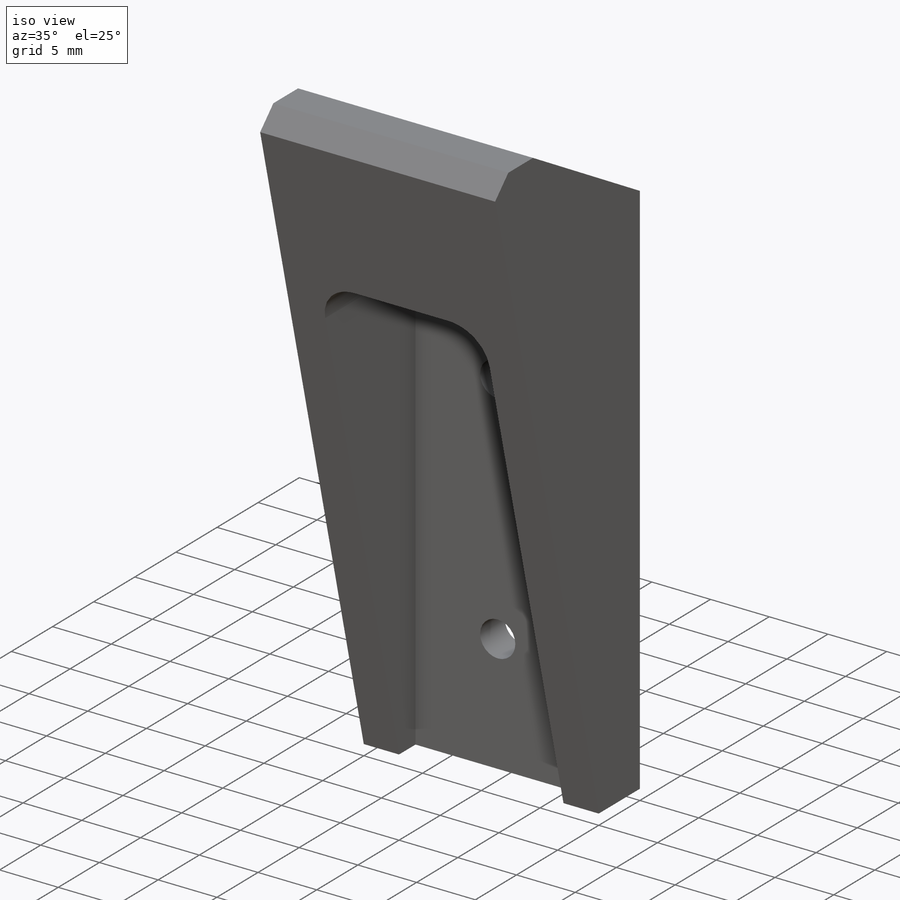
[diagram: iso view]
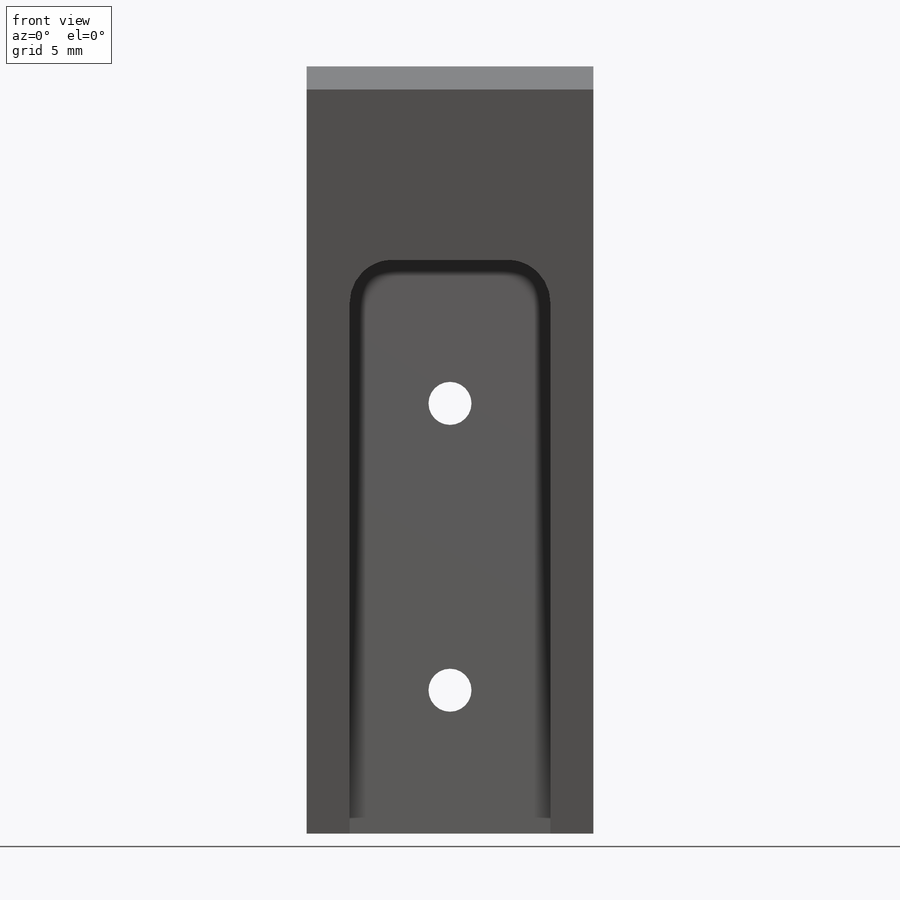
[diagram: front view]
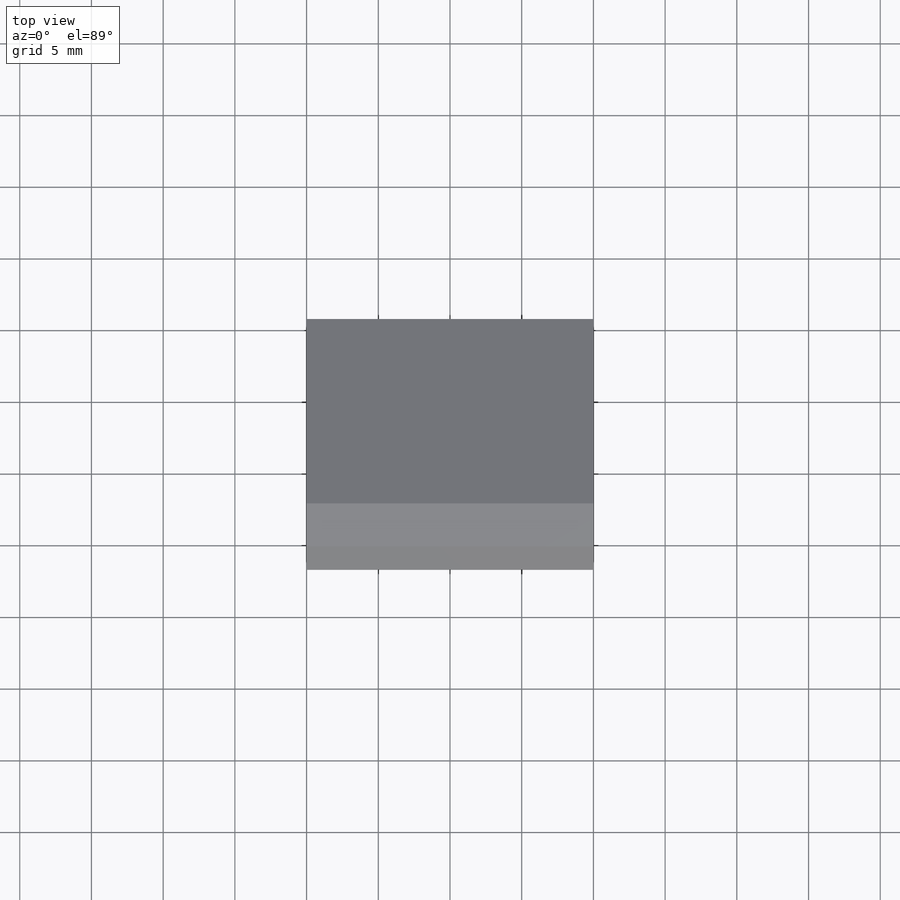
[diagram: top view]
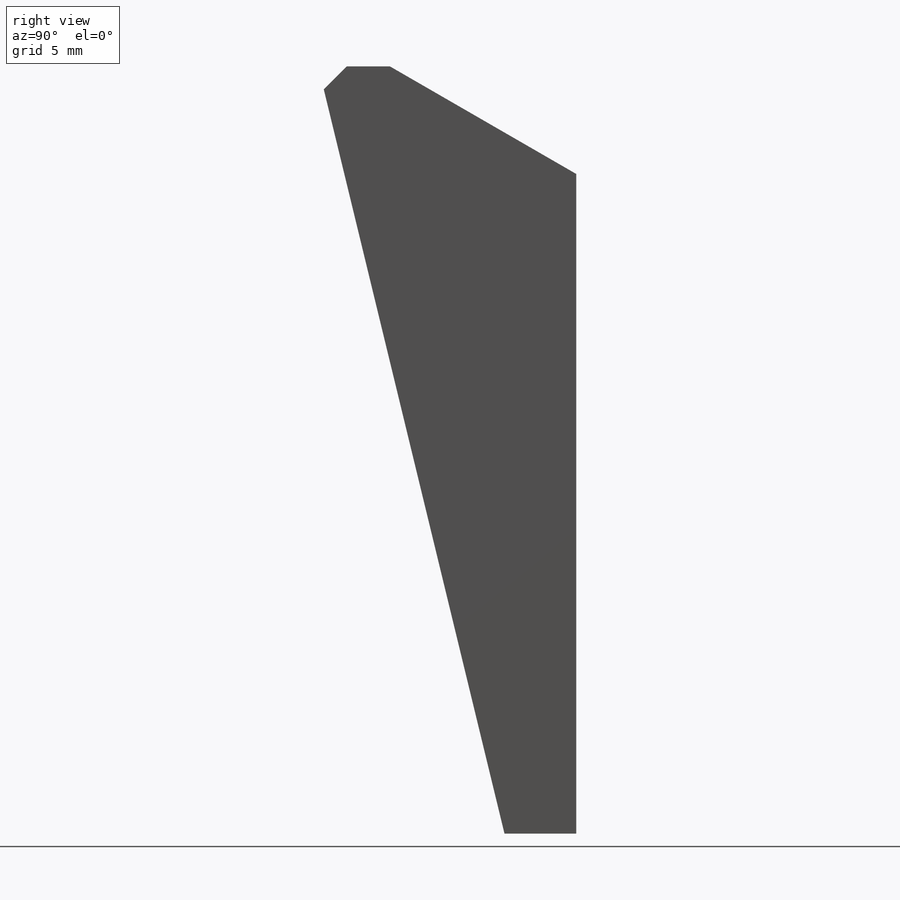
[diagram: right view]
SOLIDWORKS PART (.sldprt)
format: sldprt  version: not decoded by parser v0  size: 217,088 bytes
history: native  units: mm
features: sketch x5, plane x2, material x1, extrude x1, cut_extrude x1, fillet x1, chamfer x1, hole x1 (+13 scaffold rows collapsed)
feature tree (26):
  scaffold x13  (default folders/planes/origin — collapsed)
  material  "Material <not specified>"
  sketch  "Sketch1"  dims[c1.D1=5.0mm c1.D2=46.0mm c1.D3=5.0mm c1.D4=2.0mm c2.D3=46.0mm c3.D3=120.0deg c3.D4=15.0mm c3.D5=5.0mm]
  extrude  "Boss-Extrude1"  Depth=20mm
  plane  "Plane1"
  plane  "Plane2"
  sketch  "Sketch4"  dims[D2=3.0mm D3=3.0mm D4=40.0mm D1=0.0mm]
  cut_extrude  "Cut-Extrude1"  Depth=3mm
  sketch  "Sketch5"  dims[D1=10.0mm D2=10.0mm]
  fillet  "Fillet1"  Radius=3mm
  chamfer  "Chamfer1"  Distance=2mm Angle=45deg
  hole  "M3 Clearance"  Diameter=3.1mm Depth=3mm
  sketch  "3DSketch1"
  sketch  "Sketch7"  dims[hole-wizard template sketch: 60 standard entries collapsed; hole parameters kept: c18.Thru Hole Depth=3.0mm]
decode coverage: 9 of 10 modeling features carry decoded parameters
note: ~ marks probable driven/reference dimensions
note: suppression state not decoded; provenance and decode notes live in map.json
